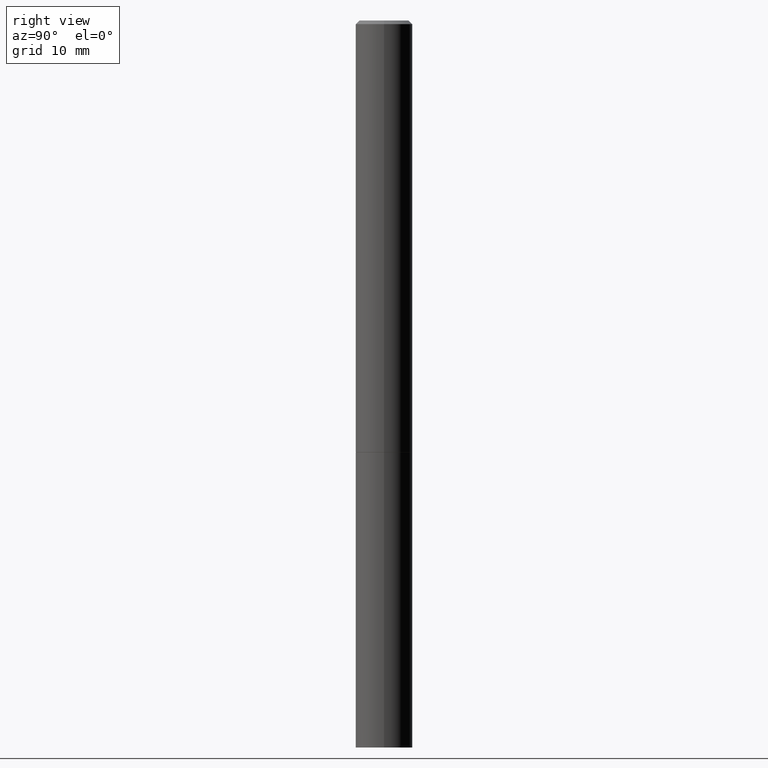
[diagram: clean part render]
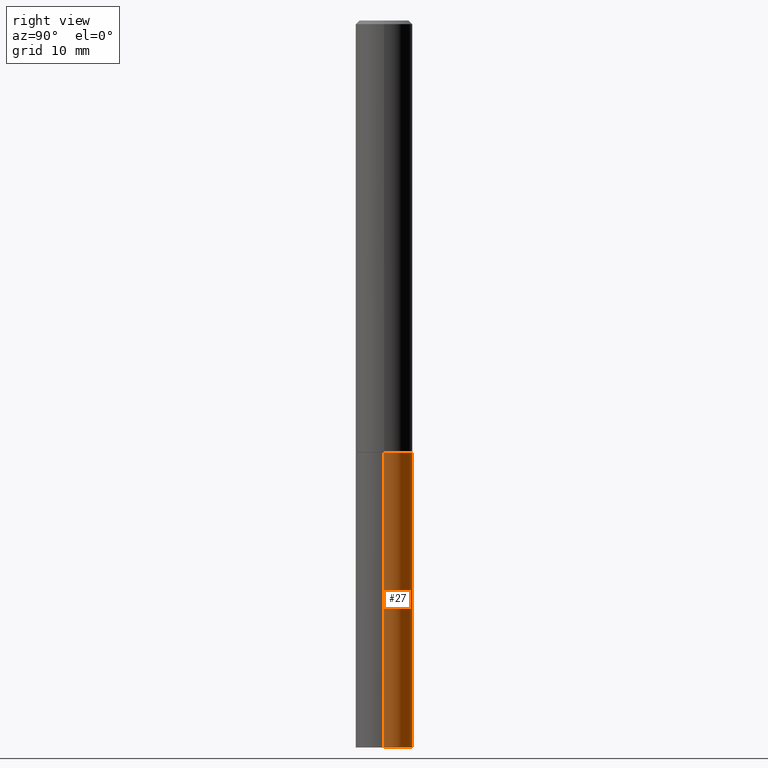
[diagram: same view with one face highlighted and labeled with its STEP entity id]
A machine part, right view. The second image highlights one B-rep face of the part: STEP entity #27.
In plain terms, the highlighted cylindrical surface (edge-blend (fillet) strip) has radius 3.9688 mm, axis along (-0, 0, 1).
Its self-contained STEP definition (entity closure, byte-faithful):
#6 = DIRECTION ( 'NONE',  ( -2.445468806185136597E-29, 3.491481338843145583E-15, 1.000000000000000000 ) ) ;
#8 = EDGE_CURVE ( 'NONE', #151, #136, #236, .T. ) ;
#10 = CARTESIAN_POINT ( 'NONE',  ( -0.1562500000000000000, 1.110223024625156540E-15, -7.685836078523291160E-30 ) ) ;
#27 = ADVANCED_FACE ( 'NONE', ( #200 ), #233, .T. ) ;
#43 = AXIS2_PLACEMENT_3D ( 'NONE', #376, #165, #340 ) ;
#52 = CIRCLE ( 'NONE', #304, 0.1562500000000000000 ) ;
#55 = DIRECTION ( 'NONE',  ( -2.445468806185136597E-29, 3.491481338843145583E-15, 1.000000000000000000 ) ) ;
#57 = ORIENTED_EDGE ( 'NONE', *, *, #8, .F. ) ;
#70 = CARTESIAN_POINT ( 'NONE',  ( -0.1562499999999997224, -1.287483743698410395E-14, -4.000000000000000000 ) ) ;
#81 = AXIS2_PLACEMENT_3D ( 'NONE', #357, #55, #262 ) ;
#85 = DIRECTION ( 'NONE',  ( -2.445468806185136877E-29, 3.491481338843145188E-15, 1.000000000000000000 ) ) ;
#102 = VECTOR ( 'NONE', #85, 39.37007874015748143 ) ;
#114 = ORIENTED_EDGE ( 'NONE', *, *, #390, .F. ) ;
#134 = CARTESIAN_POINT ( 'NONE',  ( -0.1562500000000000000, -1.001887374293736968E-14, -2.375000000000000000 ) ) ;
#136 = VERTEX_POINT ( 'NONE', #183 ) ;
#139 = EDGE_LOOP ( 'NONE', ( #224, #180, #114, #57 ) ) ;
#151 = VERTEX_POINT ( 'NONE', #216 ) ;
#160 = VECTOR ( 'NONE', #282, 39.37007874015748143 ) ;
#161 = LINE ( 'NONE', #10, #160 ) ;
#165 = DIRECTION ( 'NONE',  ( -2.445468806185136597E-29, 3.491481338843145583E-15, 1.000000000000000000 ) ) ;
#173 = CARTESIAN_POINT ( 'NONE',  ( 0.1562500000000000000, -1.091087918388479174E-15, 7.619026212181150377E-30 ) ) ;
#180 = ORIENTED_EDGE ( 'NONE', *, *, #307, .T. ) ;
#183 = CARTESIAN_POINT ( 'NONE',  ( 0.1562500000000000000, -9.383356098140948502E-15, -2.375000000000000000 ) ) ;
#192 = CARTESIAN_POINT ( 'NONE',  ( 5.807988414689699417E-29, -8.292268179752470118E-15, -2.375000000000000000 ) ) ;
#200 = FACE_OUTER_BOUND ( 'NONE', #139, .T. ) ;
#216 = CARTESIAN_POINT ( 'NONE',  ( 0.1562499999999997224, -1.503787816752438098E-14, -4.000000000000000000 ) ) ;
#224 = ORIENTED_EDGE ( 'NONE', *, *, #288, .T. ) ;
#233 = CYLINDRICAL_SURFACE ( 'NONE', #81, 0.1562500000000000000 ) ;
#236 = LINE ( 'NONE', #173, #102 ) ;
#247 = DIRECTION ( 'NONE',  ( 1.000000000000000000, -6.982962677686262766E-15, 0.000000000000000000 ) ) ;
#262 = DIRECTION ( 'NONE',  ( 1.000000000000000000, -6.982962677686266711E-15, 4.876176775795936353E-29 ) ) ;
#282 = DIRECTION ( 'NONE',  ( -2.445468806185136877E-29, 3.491481338843145188E-15, 1.000000000000000000 ) ) ;
#288 = EDGE_CURVE ( 'NONE', #151, #377, #309, .T. ) ;
#304 = AXIS2_PLACEMENT_3D ( 'NONE', #192, #6, #247 ) ;
#307 = EDGE_CURVE ( 'NONE', #377, #327, #161, .T. ) ;
#309 = CIRCLE ( 'NONE', #43, 0.1562500000000000000 ) ;
#327 = VERTEX_POINT ( 'NONE', #134 ) ;
#340 = DIRECTION ( 'NONE',  ( 1.000000000000000000, -6.982962677686262766E-15, 0.000000000000000000 ) ) ;
#357 = CARTESIAN_POINT ( 'NONE',  ( 0.000000000000000000, 0.000000000000000000, 0.000000000000000000 ) ) ;
#376 = CARTESIAN_POINT ( 'NONE',  ( 9.781875224740546387E-29, -1.396592535537258233E-14, -4.000000000000000000 ) ) ;
#377 = VERTEX_POINT ( 'NONE', #70 ) ;
#390 = EDGE_CURVE ( 'NONE', #136, #327, #52, .T. ) ;